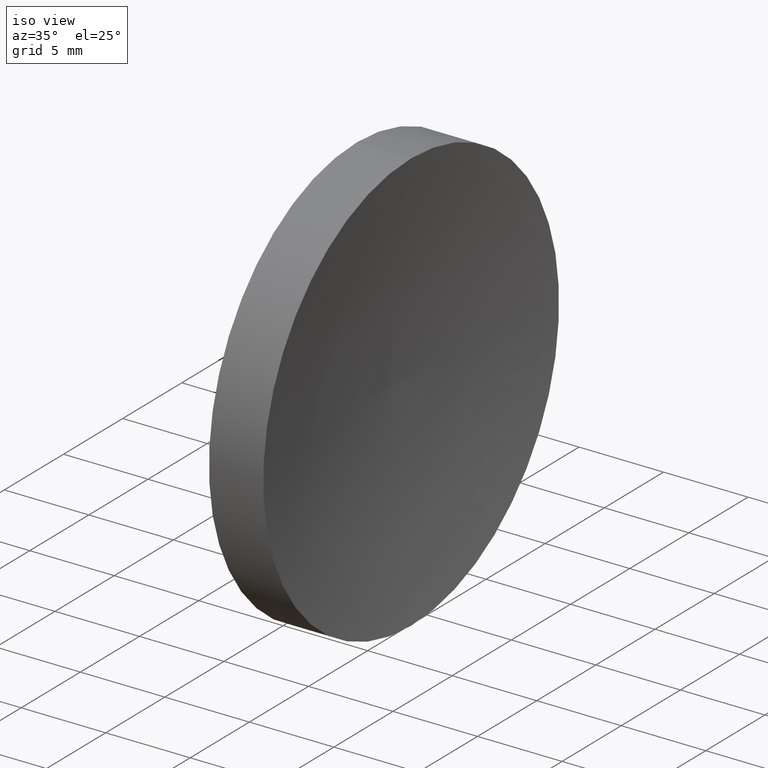
[diagram: clean part render]
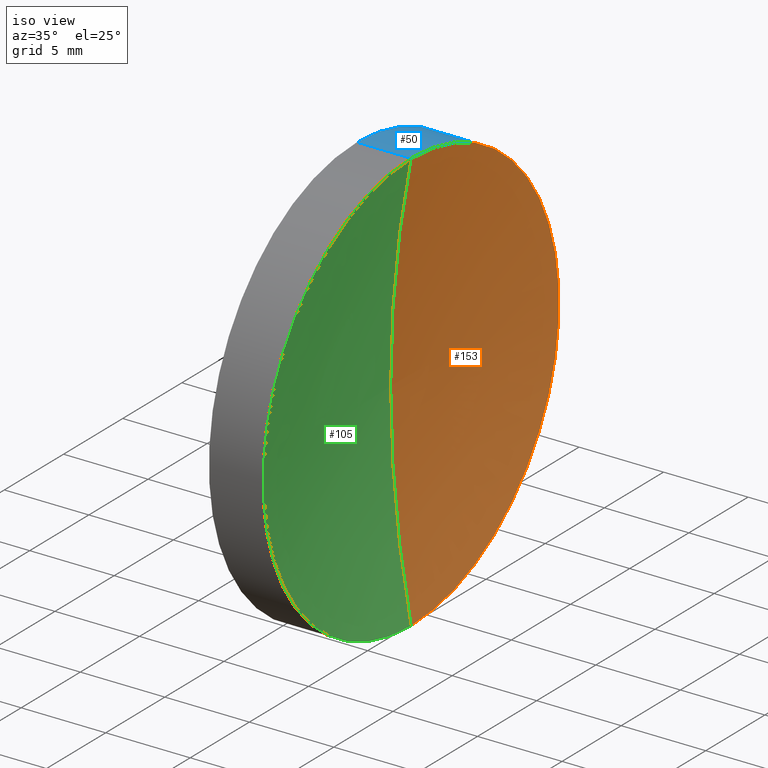
[diagram: same view with three faces highlighted in distinct colors, each labeled with its STEP entity id]
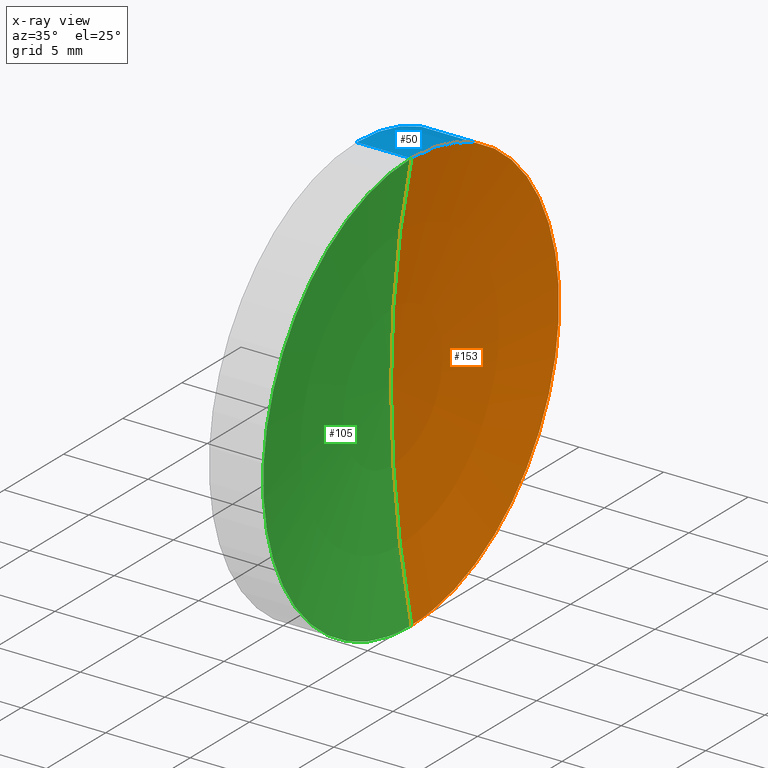
[diagram: x-ray of the same camera — body ghosted, the three highlighted faces saturated]
A machine part, iso view with three faces highlighted in distinct colors.
The next image is the same camera in x-ray (body ghosted, the three faces saturated) — at least one of them is partly hidden behind the body in this view.
Their STEP definitions:

[orange] entity #153 — the highlighted toroidal blend (fillet) surface has major radius 0.047 mm and minor (blend) radius 64.55 mm.
#4 = AXIS2_PLACEMENT_3D ( 'NONE', #35, #98, #83 ) ;
#8 = AXIS2_PLACEMENT_3D ( 'NONE', #47, #74, #85 ) ;
#9 = ORIENTED_EDGE ( 'NONE', *, *, #144, .F. ) ;
#20 = DIRECTION ( 'NONE',  ( 0.0000000000000000000, -1.074964198901197400E-016, 1.000000000000000000 ) ) ;
#22 = EDGE_LOOP ( 'NONE', ( #9, #52, #142 ) ) ;
#27 = CARTESIAN_POINT ( 'NONE',  ( 60.74492795786347400, 32.61076812922678400, 12.49999999999999600 ) ) ;
#34 = VERTEX_POINT ( 'NONE', #27 ) ;
#35 = CARTESIAN_POINT ( 'NONE',  ( 124.0823199437282200, 32.61076812922678400, 0.0000000000000000000 ) ) ;
#39 = CIRCLE ( 'NONE', #108, 64.54999999999999700 ) ;
#47 = CARTESIAN_POINT ( 'NONE',  ( 60.74492795786346700, 32.61076812922678400, 0.0000000000000000000 ) ) ;
#52 = ORIENTED_EDGE ( 'NONE', *, *, #133, .F. ) ;
#59 = CARTESIAN_POINT ( 'NONE',  ( 124.0823199437282200, 32.61076812922678400, 0.04699729266405966400 ) ) ;
#65 = AXIS2_PLACEMENT_3D ( 'NONE', #59, #127, #164 ) ;
#74 = DIRECTION ( 'NONE',  ( -1.000000000000000000, -0.0000000000000000000, -0.0000000000000000000 ) ) ;
#81 = FACE_OUTER_BOUND ( 'NONE', #22, .T. ) ;
#83 = DIRECTION ( 'NONE',  ( 0.0000000000000000000, 0.0000000000000000000, 1.000000000000000000 ) ) ;
#85 = DIRECTION ( 'NONE',  ( 0.0000000000000000000, 0.0000000000000000000, 1.000000000000000000 ) ) ;
#87 = CARTESIAN_POINT ( 'NONE',  ( 124.0823199437282200, 32.61076812922678400, -0.04699729266405966400 ) ) ;
#93 = VERTEX_POINT ( 'NONE', #163 ) ;
#98 = DIRECTION ( 'NONE',  ( -1.000000000000000000, -0.0000000000000000000, -0.0000000000000000000 ) ) ;
#100 = DIRECTION ( 'NONE',  ( -0.0000000000000000000, 1.000000000000000000, 1.224646799147353200E-016 ) ) ;
#107 = EDGE_CURVE ( 'NONE', #34, #147, #117, .T. ) ;
#108 = AXIS2_PLACEMENT_3D ( 'NONE', #87, #100, #20 ) ;
#117 = CIRCLE ( 'NONE', #65, 64.54999999999999700 ) ;
#121 = TOROIDAL_SURFACE ( 'NONE', #4, 0.04699729266405966400, 64.54999999999999700 ) ;
#127 = DIRECTION ( 'NONE',  ( 0.0000000000000000000, -1.000000000000000000, 0.0000000000000000000 ) ) ;
#133 = EDGE_CURVE ( 'NONE', #34, #93, #146, .T. ) ;
#142 = ORIENTED_EDGE ( 'NONE', *, *, #107, .T. ) ;
#144 = EDGE_CURVE ( 'NONE', #93, #147, #39, .T. ) ;
#146 = CIRCLE ( 'NONE', #8, 12.49999999999999600 ) ;
#147 = VERTEX_POINT ( 'NONE', #151 ) ;
#151 = CARTESIAN_POINT ( 'NONE',  ( 59.53233705252613800, 32.61076812922678400, 0.0000000000000000000 ) ) ;
#153 = ADVANCED_FACE ( 'NONE', ( #81 ), #121, .F. ) ;
#163 = CARTESIAN_POINT ( 'NONE',  ( 60.74492795786347400, 32.61076812922678400, -12.49999999999999600 ) ) ;
#164 = DIRECTION ( 'NONE',  ( 0.0000000000000000000, 0.0000000000000000000, -1.000000000000000000 ) ) ;

[blue] entity #50 — the highlighted cylindrical surface (partial cylindrical patch) has radius 12.5 mm, axis along (-1, -0, -0).
#1 = DIRECTION ( 'NONE',  ( -1.000000000000000000, -0.0000000000000000000, -0.0000000000000000000 ) ) ;
#2 = DIRECTION ( 'NONE',  ( -1.000000000000000000, -0.0000000000000000000, -0.0000000000000000000 ) ) ;
#5 = VECTOR ( 'NONE', #2, 1000.000000000000000 ) ;
#6 = CARTESIAN_POINT ( 'NONE',  ( 57.53233705252611700, 32.61076812922678400, 12.49999999999999600 ) ) ;
#8 = AXIS2_PLACEMENT_3D ( 'NONE', #47, #74, #85 ) ;
#16 = DIRECTION ( 'NONE',  ( 0.0000000000000000000, 0.0000000000000000000, 1.000000000000000000 ) ) ;
#23 = EDGE_CURVE ( 'NONE', #34, #131, #112, .T. ) ;
#27 = CARTESIAN_POINT ( 'NONE',  ( 60.74492795786347400, 32.61076812922678400, 12.49999999999999600 ) ) ;
#29 = VERTEX_POINT ( 'NONE', #56 ) ;
#30 = CARTESIAN_POINT ( 'NONE',  ( 56.10091507999716500, 32.61076812922678400, 12.49999999999999600 ) ) ;
#34 = VERTEX_POINT ( 'NONE', #27 ) ;
#43 = EDGE_LOOP ( 'NONE', ( #99, #64, #122, #120 ) ) ;
#45 = EDGE_CURVE ( 'NONE', #93, #29, #129, .T. ) ;
#46 = CARTESIAN_POINT ( 'NONE',  ( 57.53233705252611700, 32.61076812922678400, 0.0000000000000000000 ) ) ;
#47 = CARTESIAN_POINT ( 'NONE',  ( 60.74492795786346700, 32.61076812922678400, 0.0000000000000000000 ) ) ;
#50 = ADVANCED_FACE ( 'NONE', ( #140 ), #160, .T. ) ;
#56 = CARTESIAN_POINT ( 'NONE',  ( 57.53233705252611700, 32.61076812922678400, -12.49999999999999600 ) ) ;
#57 = CARTESIAN_POINT ( 'NONE',  ( 56.10091507999716500, 32.61076812922678400, -12.49999999999999600 ) ) ;
#64 = ORIENTED_EDGE ( 'NONE', *, *, #45, .T. ) ;
#66 = AXIS2_PLACEMENT_3D ( 'NONE', #46, #137, #16 ) ;
#69 = AXIS2_PLACEMENT_3D ( 'NONE', #111, #1, #158 ) ;
#74 = DIRECTION ( 'NONE',  ( -1.000000000000000000, -0.0000000000000000000, -0.0000000000000000000 ) ) ;
#85 = DIRECTION ( 'NONE',  ( 0.0000000000000000000, 0.0000000000000000000, 1.000000000000000000 ) ) ;
#93 = VERTEX_POINT ( 'NONE', #163 ) ;
#95 = CIRCLE ( 'NONE', #66, 12.49999999999999600 ) ;
#96 = DIRECTION ( 'NONE',  ( -1.000000000000000000, -0.0000000000000000000, -0.0000000000000000000 ) ) ;
#99 = ORIENTED_EDGE ( 'NONE', *, *, #133, .T. ) ;
#111 = CARTESIAN_POINT ( 'NONE',  ( 56.10091507999716500, 32.61076812922678400, 0.0000000000000000000 ) ) ;
#112 = LINE ( 'NONE', #30, #118 ) ;
#118 = VECTOR ( 'NONE', #96, 1000.000000000000000 ) ;
#120 = ORIENTED_EDGE ( 'NONE', *, *, #23, .F. ) ;
#122 = ORIENTED_EDGE ( 'NONE', *, *, #155, .F. ) ;
#129 = LINE ( 'NONE', #57, #5 ) ;
#131 = VERTEX_POINT ( 'NONE', #6 ) ;
#133 = EDGE_CURVE ( 'NONE', #34, #93, #146, .T. ) ;
#137 = DIRECTION ( 'NONE',  ( -1.000000000000000000, -0.0000000000000000000, -0.0000000000000000000 ) ) ;
#140 = FACE_OUTER_BOUND ( 'NONE', #43, .T. ) ;
#146 = CIRCLE ( 'NONE', #8, 12.49999999999999600 ) ;
#155 = EDGE_CURVE ( 'NONE', #131, #29, #95, .T. ) ;
#158 = DIRECTION ( 'NONE',  ( 0.0000000000000000000, 0.0000000000000000000, 1.000000000000000000 ) ) ;
#160 = CYLINDRICAL_SURFACE ( 'NONE', #69, 12.49999999999999600 ) ;
#163 = CARTESIAN_POINT ( 'NONE',  ( 60.74492795786347400, 32.61076812922678400, -12.49999999999999600 ) ) ;

[green] entity #105 — the highlighted toroidal blend (fillet) surface has major radius 0.047 mm and minor (blend) radius 64.55 mm.
#20 = DIRECTION ( 'NONE',  ( 0.0000000000000000000, -1.074964198901197400E-016, 1.000000000000000000 ) ) ;
#27 = CARTESIAN_POINT ( 'NONE',  ( 60.74492795786347400, 32.61076812922678400, 12.49999999999999600 ) ) ;
#34 = VERTEX_POINT ( 'NONE', #27 ) ;
#36 = CARTESIAN_POINT ( 'NONE',  ( 124.0823199437282200, 32.61076812922678400, 0.0000000000000000000 ) ) ;
#38 = ORIENTED_EDGE ( 'NONE', *, *, #94, .F. ) ;
#39 = CIRCLE ( 'NONE', #108, 64.54999999999999700 ) ;
#40 = AXIS2_PLACEMENT_3D ( 'NONE', #36, #128, #115 ) ;
#55 = TOROIDAL_SURFACE ( 'NONE', #40, 0.04699729266405966400, 64.54999999999999700 ) ;
#59 = CARTESIAN_POINT ( 'NONE',  ( 124.0823199437282200, 32.61076812922678400, 0.04699729266405966400 ) ) ;
#63 = CIRCLE ( 'NONE', #110, 12.49999999999999600 ) ;
#65 = AXIS2_PLACEMENT_3D ( 'NONE', #59, #127, #164 ) ;
#75 = FACE_OUTER_BOUND ( 'NONE', #162, .T. ) ;
#84 = DIRECTION ( 'NONE',  ( 0.0000000000000000000, 0.0000000000000000000, 1.000000000000000000 ) ) ;
#87 = CARTESIAN_POINT ( 'NONE',  ( 124.0823199437282200, 32.61076812922678400, -0.04699729266405966400 ) ) ;
#93 = VERTEX_POINT ( 'NONE', #163 ) ;
#94 = EDGE_CURVE ( 'NONE', #93, #34, #63, .T. ) ;
#100 = DIRECTION ( 'NONE',  ( -0.0000000000000000000, 1.000000000000000000, 1.224646799147353200E-016 ) ) ;
#105 = ADVANCED_FACE ( 'NONE', ( #75 ), #55, .F. ) ;
#107 = EDGE_CURVE ( 'NONE', #34, #147, #117, .T. ) ;
#108 = AXIS2_PLACEMENT_3D ( 'NONE', #87, #100, #20 ) ;
#110 = AXIS2_PLACEMENT_3D ( 'NONE', #150, #135, #84 ) ;
#114 = ORIENTED_EDGE ( 'NONE', *, *, #107, .F. ) ;
#115 = DIRECTION ( 'NONE',  ( 0.0000000000000000000, 0.0000000000000000000, 1.000000000000000000 ) ) ;
#117 = CIRCLE ( 'NONE', #65, 64.54999999999999700 ) ;
#127 = DIRECTION ( 'NONE',  ( 0.0000000000000000000, -1.000000000000000000, 0.0000000000000000000 ) ) ;
#128 = DIRECTION ( 'NONE',  ( -1.000000000000000000, -0.0000000000000000000, -0.0000000000000000000 ) ) ;
#135 = DIRECTION ( 'NONE',  ( -1.000000000000000000, -0.0000000000000000000, -0.0000000000000000000 ) ) ;
#143 = ORIENTED_EDGE ( 'NONE', *, *, #144, .T. ) ;
#144 = EDGE_CURVE ( 'NONE', #93, #147, #39, .T. ) ;
#147 = VERTEX_POINT ( 'NONE', #151 ) ;
#150 = CARTESIAN_POINT ( 'NONE',  ( 60.74492795786346700, 32.61076812922678400, 0.0000000000000000000 ) ) ;
#151 = CARTESIAN_POINT ( 'NONE',  ( 59.53233705252613800, 32.61076812922678400, 0.0000000000000000000 ) ) ;
#162 = EDGE_LOOP ( 'NONE', ( #38, #143, #114 ) ) ;
#163 = CARTESIAN_POINT ( 'NONE',  ( 60.74492795786347400, 32.61076812922678400, -12.49999999999999600 ) ) ;
#164 = DIRECTION ( 'NONE',  ( 0.0000000000000000000, 0.0000000000000000000, -1.000000000000000000 ) ) ;